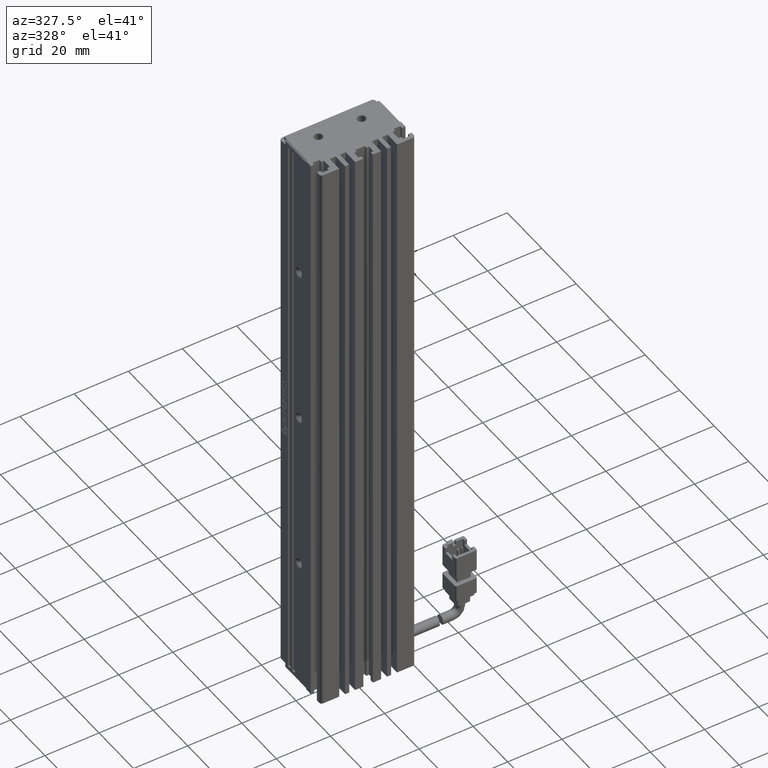
[diagram: clean part render]
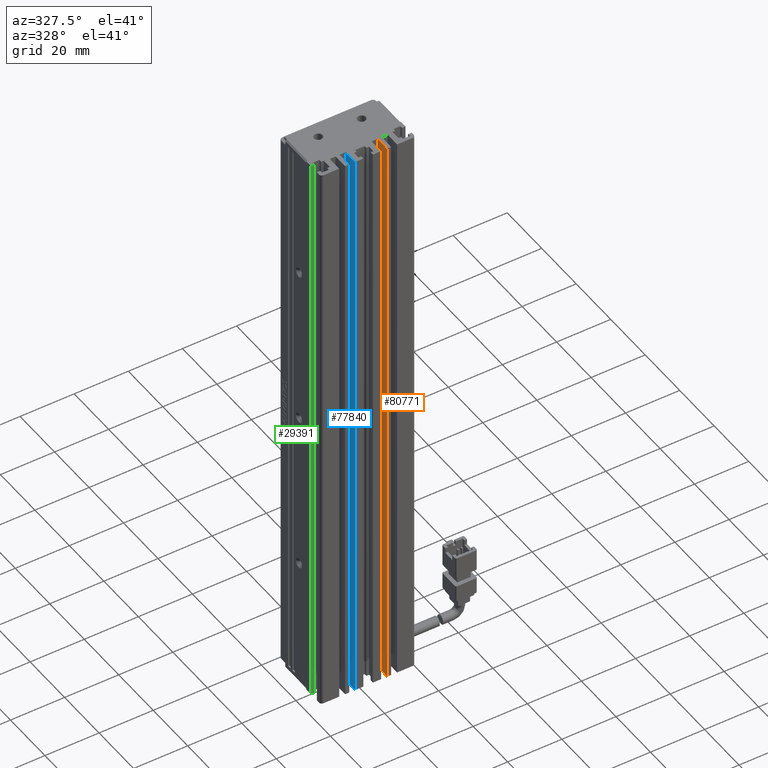
[diagram: same view with three faces highlighted in distinct colors, each labeled with its STEP entity id]
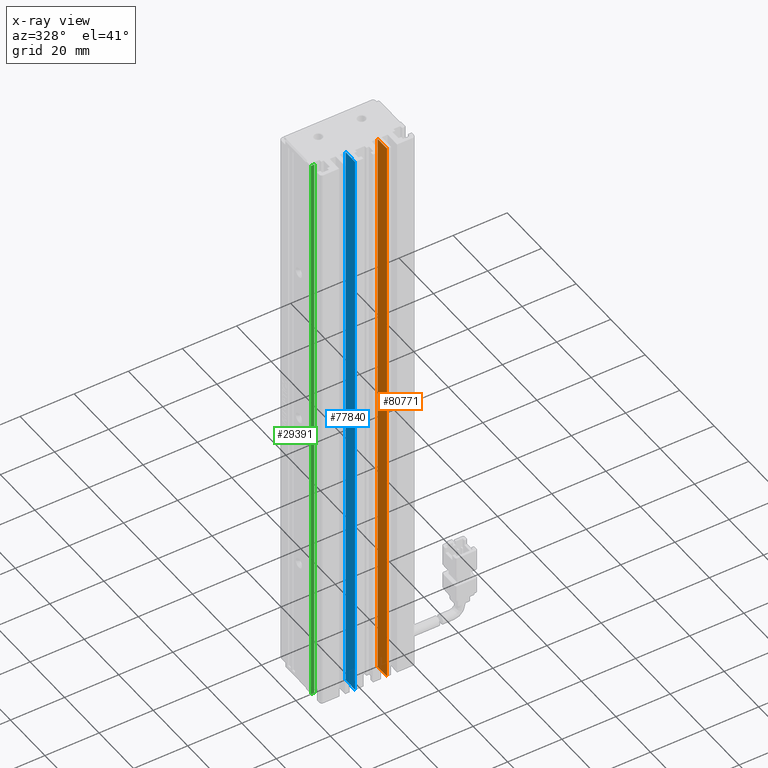
[diagram: x-ray of the same camera — body ghosted, the three highlighted faces saturated]
A machine part, auxiliary view with three faces highlighted in distinct colors.
The next image is the same camera in x-ray (body ghosted, the three faces saturated) — at least one of them is partly hidden behind the body in this view.
Their STEP definitions:

[orange] entity #80771 — the highlighted planar face has unit normal (-1, 0, 0).
#10188 = DIRECTION ( 'NONE',  ( 0.0000000000000000000, 0.0000000000000000000, 1.000000000000000000 ) ) ;
#12304 = DIRECTION ( 'NONE',  ( -1.000000000000000000, 0.0000000000000000000, 0.0000000000000000000 ) ) ;
#14524 = CARTESIAN_POINT ( 'NONE',  ( 47.92537974683541800, 7.083797468354437600, -224.0000000000000000 ) ) ;
#14786 = LINE ( 'NONE', #24012, #61795 ) ;
#18594 = EDGE_LOOP ( 'NONE', ( #19596, #89913, #32258, #84319 ) ) ;
#19353 = DIRECTION ( 'NONE',  ( 0.0000000000000000000, 0.0000000000000000000, 1.000000000000000000 ) ) ;
#19513 = VECTOR ( 'NONE', #25764, 1000.000000000000000 ) ;
#19596 = ORIENTED_EDGE ( 'NONE', *, *, #29906, .F. ) ;
#21773 = CARTESIAN_POINT ( 'NONE',  ( 47.92537974683541800, 10.99073232304837000, -6.000000000000005300 ) ) ;
#24012 = CARTESIAN_POINT ( 'NONE',  ( 47.92537974683541800, 10.99073232304837000, -6.000000000000005300 ) ) ;
#25764 = DIRECTION ( 'NONE',  ( -0.0000000000000000000, -0.0000000000000000000, -1.000000000000000000 ) ) ;
#28716 = LINE ( 'NONE', #84068, #51701 ) ;
#29906 = EDGE_CURVE ( 'NONE', #53148, #50674, #28716, .T. ) ;
#32258 = ORIENTED_EDGE ( 'NONE', *, *, #41995, .T. ) ;
#33993 = DIRECTION ( 'NONE',  ( -0.0000000000000000000, -1.000000000000000000, 0.0000000000000000000 ) ) ;
#34055 = PLANE ( 'NONE',  #68212 ) ;
#34662 = CARTESIAN_POINT ( 'NONE',  ( 47.92537974683541800, 7.083797468354437600, -6.000000000000005300 ) ) ;
#41512 = CARTESIAN_POINT ( 'NONE',  ( 47.92537974683541800, 16.49073232304837000, -6.000000000000005300 ) ) ;
#41995 = EDGE_CURVE ( 'NONE', #45917, #89357, #81658, .T. ) ;
#42312 = EDGE_CURVE ( 'NONE', #89357, #50674, #14786, .T. ) ;
#44393 = CARTESIAN_POINT ( 'NONE',  ( 47.92537974683541800, 10.99073232304837000, -224.0000000000000000 ) ) ;
#45917 = VERTEX_POINT ( 'NONE', #69476 ) ;
#50674 = VERTEX_POINT ( 'NONE', #21773 ) ;
#51701 = VECTOR ( 'NONE', #33993, 1000.000000000000000 ) ;
#53148 = VERTEX_POINT ( 'NONE', #41512 ) ;
#54466 = CARTESIAN_POINT ( 'NONE',  ( 47.92537974683541800, 16.49073232304836600, -6.000000000000005300 ) ) ;
#54468 = FACE_OUTER_BOUND ( 'NONE', #18594, .T. ) ;
#59907 = LINE ( 'NONE', #54466, #19513 ) ;
#61795 = VECTOR ( 'NONE', #10188, 1000.000000000000000 ) ;
#66358 = VECTOR ( 'NONE', #90663, 1000.000000000000000 ) ;
#68212 = AXIS2_PLACEMENT_3D ( 'NONE', #34662, #12304, #19353 ) ;
#69476 = CARTESIAN_POINT ( 'NONE',  ( 47.92537974683541800, 16.49073232304837000, -224.0000000000000000 ) ) ;
#80771 = ADVANCED_FACE ( 'NONE', ( #54468 ), #34055, .T. ) ;
#81658 = LINE ( 'NONE', #14524, #66358 ) ;
#84068 = CARTESIAN_POINT ( 'NONE',  ( 47.92537974683541800, 7.083797468354437600, -6.000000000000005300 ) ) ;
#84319 = ORIENTED_EDGE ( 'NONE', *, *, #42312, .T. ) ;
#87013 = EDGE_CURVE ( 'NONE', #53148, #45917, #59907, .T. ) ;
#89357 = VERTEX_POINT ( 'NONE', #44393 ) ;
#89913 = ORIENTED_EDGE ( 'NONE', *, *, #87013, .T. ) ;
#90663 = DIRECTION ( 'NONE',  ( -0.0000000000000000000, -1.000000000000000000, 0.0000000000000000000 ) ) ;

[blue] entity #77840 — the highlighted planar face has unit normal (-1, 0, 0).
#1749 = VERTEX_POINT ( 'NONE', #35753 ) ;
#6952 = VERTEX_POINT ( 'NONE', #63060 ) ;
#8185 = VERTEX_POINT ( 'NONE', #37739 ) ;
#8472 = LINE ( 'NONE', #77335, #22781 ) ;
#9329 = FACE_OUTER_BOUND ( 'NONE', #85497, .T. ) ;
#13998 = EDGE_CURVE ( 'NONE', #6952, #37807, #45583, .T. ) ;
#14660 = LINE ( 'NONE', #68450, #26715 ) ;
#19561 = VECTOR ( 'NONE', #89323, 1000.000000000000000 ) ;
#21493 = EDGE_CURVE ( 'NONE', #1749, #8185, #14660, .T. ) ;
#22525 = ORIENTED_EDGE ( 'NONE', *, *, #21493, .F. ) ;
#22781 = VECTOR ( 'NONE', #63253, 1000.000000000000000 ) ;
#26715 = VECTOR ( 'NONE', #46731, 1000.000000000000000 ) ;
#33743 = CARTESIAN_POINT ( 'NONE',  ( 36.12537974683543500, 16.49073232304837000, -6.000000000000005300 ) ) ;
#35753 = CARTESIAN_POINT ( 'NONE',  ( 36.12537974683543500, 16.49073232304837000, -6.000000000000005300 ) ) ;
#36433 = ORIENTED_EDGE ( 'NONE', *, *, #13998, .T. ) ;
#36812 = CARTESIAN_POINT ( 'NONE',  ( 36.12537974683543500, 7.083797468354437600, -6.000000000000005300 ) ) ;
#37739 = CARTESIAN_POINT ( 'NONE',  ( 36.12537974683543500, 10.99073232304837000, -6.000000000000005300 ) ) ;
#37797 = CARTESIAN_POINT ( 'NONE',  ( 36.12537974683543500, 7.083797468354437600, -224.0000000000000000 ) ) ;
#37807 = VERTEX_POINT ( 'NONE', #81829 ) ;
#38140 = LINE ( 'NONE', #33743, #19561 ) ;
#41220 = VECTOR ( 'NONE', #73602, 1000.000000000000000 ) ;
#45583 = LINE ( 'NONE', #37797, #41220 ) ;
#46731 = DIRECTION ( 'NONE',  ( -0.0000000000000000000, -1.000000000000000000, 0.0000000000000000000 ) ) ;
#56053 = EDGE_CURVE ( 'NONE', #1749, #6952, #38140, .T. ) ;
#57844 = DIRECTION ( 'NONE',  ( -1.000000000000000000, 0.0000000000000000000, 0.0000000000000000000 ) ) ;
#61558 = AXIS2_PLACEMENT_3D ( 'NONE', #36812, #57844, #85656 ) ;
#62192 = PLANE ( 'NONE',  #61558 ) ;
#63060 = CARTESIAN_POINT ( 'NONE',  ( 36.12537974683543500, 16.49073232304837000, -224.0000000000000000 ) ) ;
#63253 = DIRECTION ( 'NONE',  ( 0.0000000000000000000, -0.0000000000000000000, -1.000000000000000000 ) ) ;
#68450 = CARTESIAN_POINT ( 'NONE',  ( 36.12537974683543500, 7.083797468354437600, -6.000000000000005300 ) ) ;
#70974 = ORIENTED_EDGE ( 'NONE', *, *, #79919, .F. ) ;
#73602 = DIRECTION ( 'NONE',  ( -0.0000000000000000000, -1.000000000000000000, 0.0000000000000000000 ) ) ;
#77011 = ORIENTED_EDGE ( 'NONE', *, *, #56053, .T. ) ;
#77335 = CARTESIAN_POINT ( 'NONE',  ( 36.12537974683543500, 10.99073232304837000, -6.000000000000005300 ) ) ;
#77840 = ADVANCED_FACE ( 'NONE', ( #9329 ), #62192, .T. ) ;
#79919 = EDGE_CURVE ( 'NONE', #8185, #37807, #8472, .T. ) ;
#81829 = CARTESIAN_POINT ( 'NONE',  ( 36.12537974683543500, 10.99073232304837000, -224.0000000000000000 ) ) ;
#85497 = EDGE_LOOP ( 'NONE', ( #22525, #77011, #36433, #70974 ) ) ;
#85656 = DIRECTION ( 'NONE',  ( 0.0000000000000000000, 0.0000000000000000000, 1.000000000000000000 ) ) ;
#89323 = DIRECTION ( 'NONE',  ( -0.0000000000000000000, -0.0000000000000000000, -1.000000000000000000 ) ) ;

[green] entity #29391 — the highlighted planar face has unit normal (0, 1, -0).
#851 = ORIENTED_EDGE ( 'NONE', *, *, #21468, .F. ) ;
#6464 = PLANE ( 'NONE',  #38925 ) ;
#6676 = CARTESIAN_POINT ( 'NONE',  ( 23.42537974683542100, 16.79073232304837400, -6.000000000000005300 ) ) ;
#9951 = VECTOR ( 'NONE', #27512, 1000.000000000000000 ) ;
#10874 = EDGE_LOOP ( 'NONE', ( #851, #72965, #57793, #34372 ) ) ;
#12484 = CARTESIAN_POINT ( 'NONE',  ( 40.92537974683542500, 16.79073232304837400, -224.0000000000000000 ) ) ;
#14042 = LINE ( 'NONE', #73458, #39255 ) ;
#21468 = EDGE_CURVE ( 'NONE', #61746, #72792, #68332, .T. ) ;
#26356 = VECTOR ( 'NONE', #85841, 1000.000000000000000 ) ;
#27512 = DIRECTION ( 'NONE',  ( 0.0000000000000000000, 0.0000000000000000000, 1.000000000000000000 ) ) ;
#29391 = ADVANCED_FACE ( 'NONE', ( #47477 ), #6464, .F. ) ;
#33329 = VECTOR ( 'NONE', #53156, 1000.000000000000000 ) ;
#34372 = ORIENTED_EDGE ( 'NONE', *, *, #75061, .T. ) ;
#35145 = LINE ( 'NONE', #12484, #26356 ) ;
#38925 = AXIS2_PLACEMENT_3D ( 'NONE', #90239, #75923, #55695 ) ;
#39255 = VECTOR ( 'NONE', #53259, 1000.000000000000000 ) ;
#39397 = CARTESIAN_POINT ( 'NONE',  ( 24.72537974683541900, 16.79073232304837400, -6.000000000000005300 ) ) ;
#47477 = FACE_OUTER_BOUND ( 'NONE', #10874, .T. ) ;
#52117 = VERTEX_POINT ( 'NONE', #6676 ) ;
#53156 = DIRECTION ( 'NONE',  ( -0.0000000000000000000, -0.0000000000000000000, -1.000000000000000000 ) ) ;
#53259 = DIRECTION ( 'NONE',  ( 1.000000000000000000, 0.0000000000000000000, 0.0000000000000000000 ) ) ;
#54114 = EDGE_CURVE ( 'NONE', #77635, #52117, #66843, .T. ) ;
#55695 = DIRECTION ( 'NONE',  ( -1.000000000000000000, 1.334402673828317800E-015, 0.0000000000000000000 ) ) ;
#57793 = ORIENTED_EDGE ( 'NONE', *, *, #54114, .F. ) ;
#61746 = VERTEX_POINT ( 'NONE', #73649 ) ;
#66843 = LINE ( 'NONE', #83742, #9951 ) ;
#68332 = LINE ( 'NONE', #39397, #33329 ) ;
#72792 = VERTEX_POINT ( 'NONE', #73581 ) ;
#72965 = ORIENTED_EDGE ( 'NONE', *, *, #79685, .F. ) ;
#73458 = CARTESIAN_POINT ( 'NONE',  ( 40.92537974683542500, 16.79073232304837400, -6.000000000000005300 ) ) ;
#73581 = CARTESIAN_POINT ( 'NONE',  ( 24.72537974683541900, 16.79073232304837400, -224.0000000000000000 ) ) ;
#73649 = CARTESIAN_POINT ( 'NONE',  ( 24.72537974683541900, 16.79073232304837400, -6.000000000000005300 ) ) ;
#75061 = EDGE_CURVE ( 'NONE', #77635, #72792, #35145, .T. ) ;
#75923 = DIRECTION ( 'NONE',  ( 1.334402673828317800E-015, 1.000000000000000000, -0.0000000000000000000 ) ) ;
#77635 = VERTEX_POINT ( 'NONE', #82404 ) ;
#79685 = EDGE_CURVE ( 'NONE', #52117, #61746, #14042, .T. ) ;
#82404 = CARTESIAN_POINT ( 'NONE',  ( 23.42537974683542100, 16.79073232304837400, -224.0000000000000000 ) ) ;
#83742 = CARTESIAN_POINT ( 'NONE',  ( 23.42537974683542100, 16.79073232304837400, -6.000000000000005300 ) ) ;
#85841 = DIRECTION ( 'NONE',  ( 1.000000000000000000, 0.0000000000000000000, 0.0000000000000000000 ) ) ;
#90239 = CARTESIAN_POINT ( 'NONE',  ( 40.92537974683543900, 16.79073232304835600, -6.000000000000005300 ) ) ;